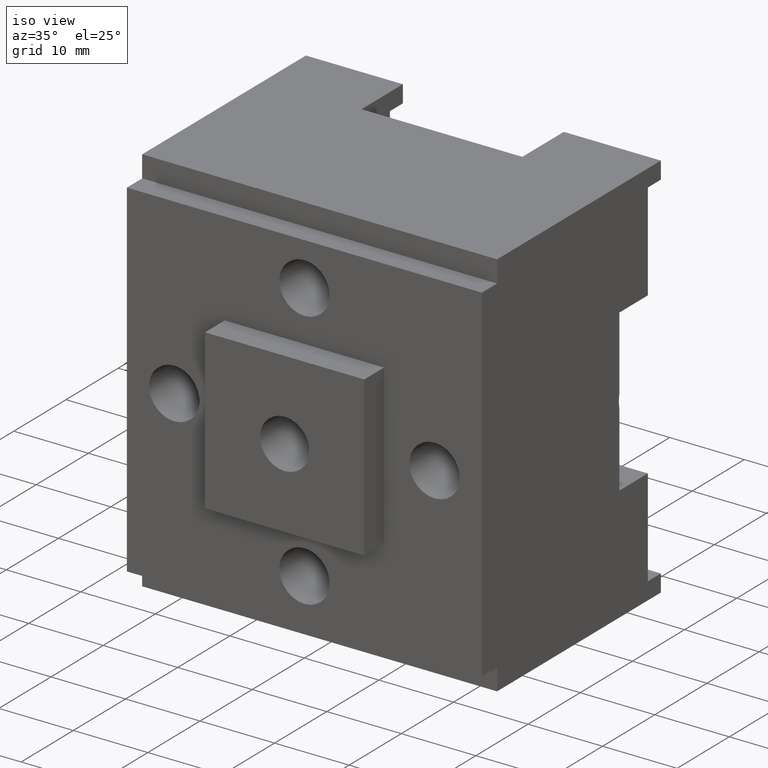
[diagram: clean part render]
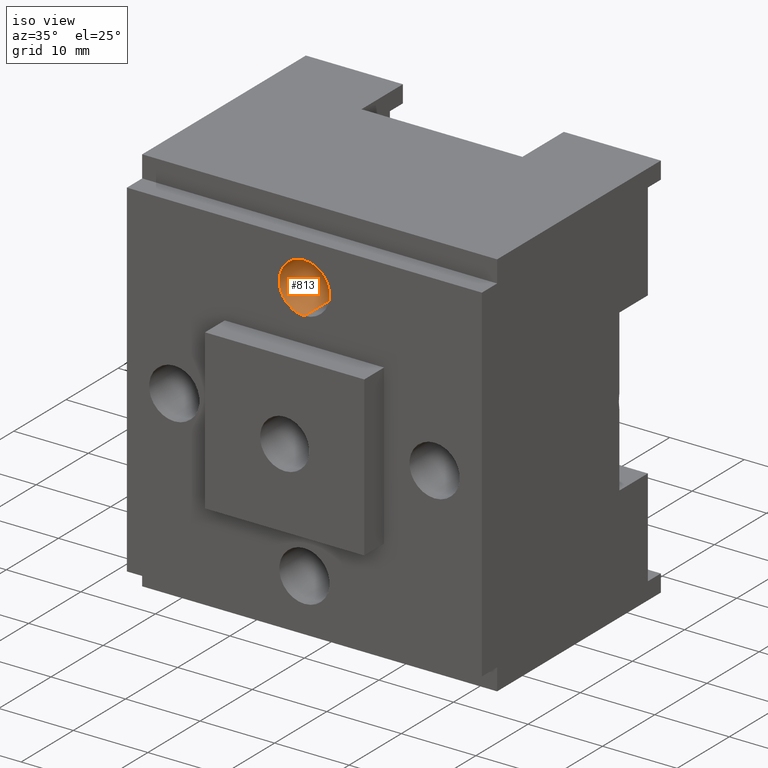
[diagram: same view with one face highlighted and labeled with its STEP entity id]
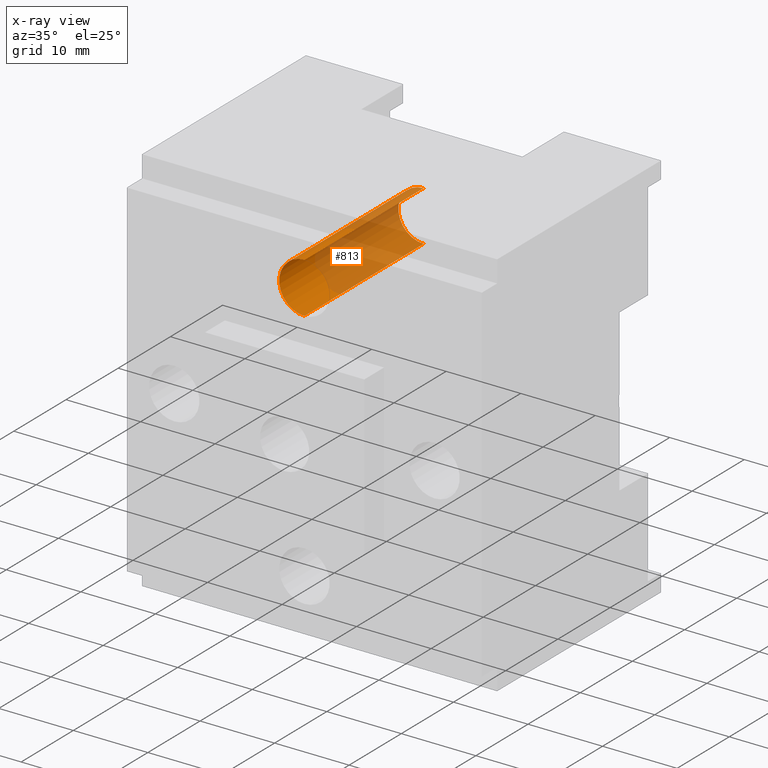
[diagram: x-ray of the same camera — body ghosted, the highlighted face saturated]
A machine part, iso view. The second image highlights one B-rep face of the part: STEP entity #813.
The next image is the same camera in x-ray: the body ghosted, the highlighted face saturated — about 67% of this face is hidden behind the body in this view.
In plain terms, the highlighted cylindrical surface (edge-blend (fillet) strip) has radius 3.3782 mm, axis along (-0, 1, -0).
Its self-contained STEP definition (entity closure, byte-faithful):
#99 = AXIS2_PLACEMENT_3D ( 'NONE', #1205, #1197, #1202 ) ;
#109 = AXIS2_PLACEMENT_3D ( 'NONE', #488, #490, #491 ) ;
#225 = CARTESIAN_POINT ( 'NONE',  ( 1.905642109631874600E-017, 1.037500000000000100, 0.5545000000000004400 ) ) ;
#228 = DIRECTION ( 'NONE',  ( -1.309289925027225900E-017, 1.000000000000000000, -3.229997658014709200E-019 ) ) ;
#270 = CARTESIAN_POINT ( 'NONE',  ( -2.768618667658977300E-018, 1.037500000000000100, 0.8205000000000000100 ) ) ;
#278 = CARTESIAN_POINT ( 'NONE',  ( 0.0000000000000000000, 0.0000000000000000000, 0.6874999999999996700 ) ) ;
#279 = DIRECTION ( 'NONE',  ( -1.309289925027225900E-017, 1.000000000000000000, -3.229997658014709200E-019 ) ) ;
#280 = DIRECTION ( 'NONE',  ( -1.309289925027225900E-017, 1.000000000000000000, -3.229997658014709200E-019 ) ) ;
#281 = DIRECTION ( 'NONE',  ( -2.081668171172166700E-017, -3.229997658014711600E-019, 1.000000000000000000 ) ) ;
#310 = CARTESIAN_POINT ( 'NONE',  ( 2.675582745619815800E-017, -4.295896885159523300E-020, 0.5544999999999998800 ) ) ;
#314 = CARTESIAN_POINT ( 'NONE',  ( 2.675582745619807200E-017, 0.8988806069298686000, 0.5545000000000003300 ) ) ;
#315 = CARTESIAN_POINT ( 'NONE',  ( -2.768618667658977300E-018, -4.295896885159559400E-020, 0.8204999999999994500 ) ) ;
#316 = CARTESIAN_POINT ( 'NONE',  ( -2.768618667658979300E-018, 0.8988806069298686000, 0.8205000000000001200 ) ) ;
#488 = CARTESIAN_POINT ( 'NONE',  ( 0.0000000000000000000, 0.8988806069298686000, 0.6875000000000002200 ) ) ;
#490 = DIRECTION ( 'NONE',  ( -1.309289925027225900E-017, 1.000000000000000000, -3.229997658014709200E-019 ) ) ;
#491 = DIRECTION ( 'NONE',  ( -2.081668171172166000E-017, 0.0000000000000000000, 1.000000000000000000 ) ) ;
#813 = ADVANCED_FACE ( 'NONE', ( #1391 ), #974, .F. ) ;
#881 = CIRCLE ( 'NONE', #109, 0.1329999999999999200 ) ;
#974 = CYLINDRICAL_SURFACE ( 'NONE', #99, 0.1329999999999997900 ) ;
#994 = LINE ( 'NONE', #225, #1006 ) ;
#1006 = VECTOR ( 'NONE', #228, 39.37007874015748100 ) ;
#1008 = VECTOR ( 'NONE', #279, 39.37007874015748100 ) ;
#1033 = LINE ( 'NONE', #270, #1008 ) ;
#1037 = CIRCLE ( 'NONE', #1297, 0.1329999999999997900 ) ;
#1197 = DIRECTION ( 'NONE',  ( -1.309289925027225900E-017, 1.000000000000000000, -3.229997658014709200E-019 ) ) ;
#1202 = DIRECTION ( 'NONE',  ( -2.081668171172166700E-017, 0.0000000000000000000, 1.000000000000000000 ) ) ;
#1205 = CARTESIAN_POINT ( 'NONE',  ( 0.0000000000000000000, 1.037500000000000100, 0.6875000000000002200 ) ) ;
#1297 = AXIS2_PLACEMENT_3D ( 'NONE', #278, #280, #281 ) ;
#1341 = EDGE_CURVE ( 'NONE', #1423, #1427, #994, .T. ) ;
#1360 = EDGE_CURVE ( 'NONE', #1428, #1429, #1033, .T. ) ;
#1361 = EDGE_CURVE ( 'NONE', #1423, #1428, #1037, .T. ) ;
#1391 = FACE_OUTER_BOUND ( 'NONE', #1651, .T. ) ;
#1423 = VERTEX_POINT ( 'NONE', #310 ) ;
#1427 = VERTEX_POINT ( 'NONE', #314 ) ;
#1428 = VERTEX_POINT ( 'NONE', #315 ) ;
#1429 = VERTEX_POINT ( 'NONE', #316 ) ;
#1651 = EDGE_LOOP ( 'NONE', ( #1674, #1678, #1671, #1725 ) ) ;
#1671 = ORIENTED_EDGE ( 'NONE', *, *, #1785, .T. ) ;
#1674 = ORIENTED_EDGE ( 'NONE', *, *, #1361, .F. ) ;
#1678 = ORIENTED_EDGE ( 'NONE', *, *, #1341, .T. ) ;
#1725 = ORIENTED_EDGE ( 'NONE', *, *, #1360, .F. ) ;
#1785 = EDGE_CURVE ( 'NONE', #1427, #1429, #881, .T. ) ;